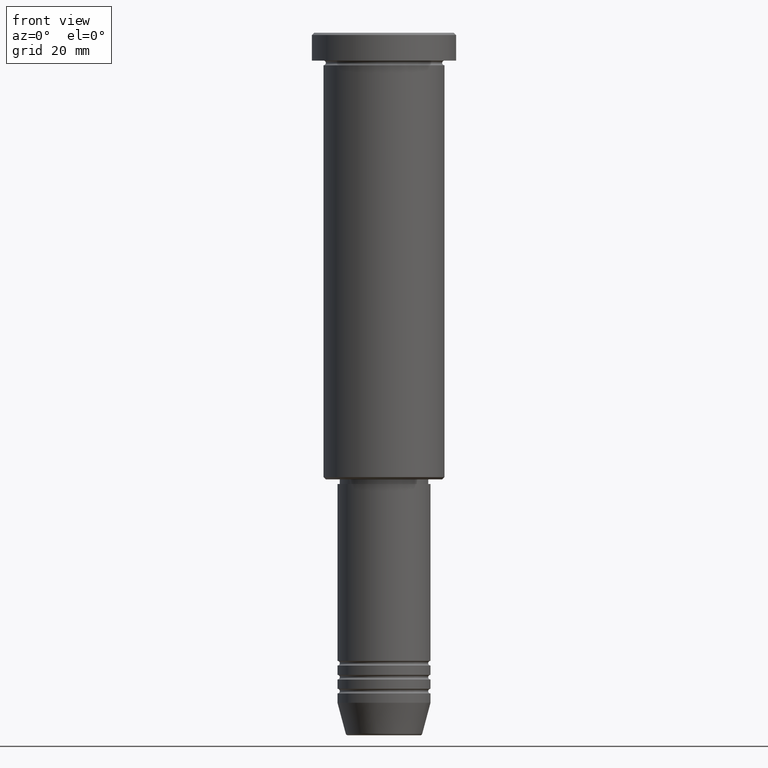
[diagram: clean part render]
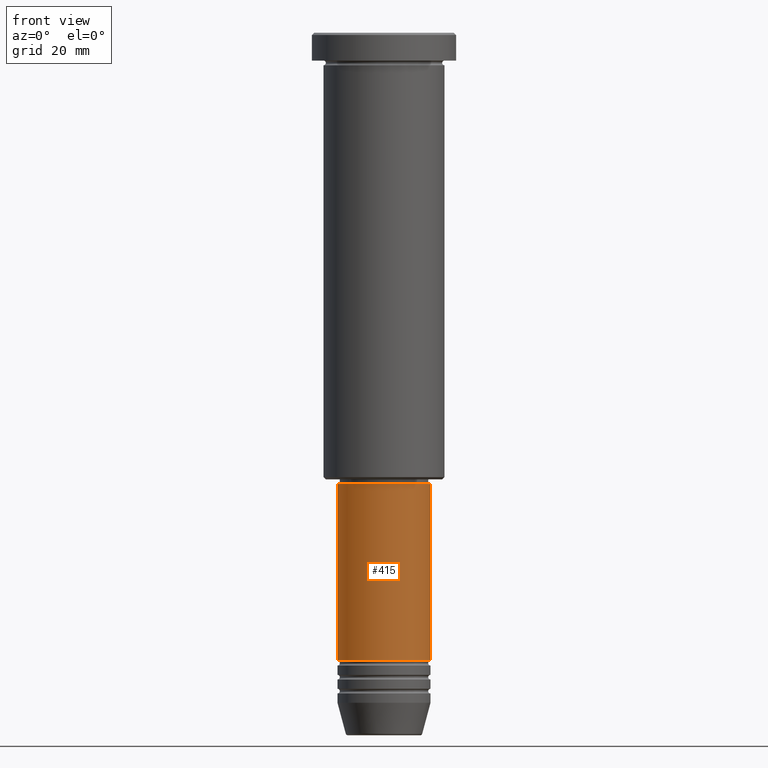
[diagram: same view with one face highlighted and labeled with its STEP entity id]
A machine part, front view. The second image highlights one B-rep face of the part: STEP entity #415.
In plain terms, the highlighted cylindrical surface (partial cylindrical patch) has radius 10 mm, axis along (-0, -0, 1).
Its self-contained STEP definition (entity closure, byte-faithful):
#10 = AXIS2_PLACEMENT_3D ( 'NONE', #1159, #329, #1049 ) ;
#45 = CARTESIAN_POINT ( 'NONE',  ( -10.00000000000000000, 1.224646799147353256E-15, -134.9999999999999716 ) ) ;
#55 = DIRECTION ( 'NONE',  ( -0.000000000000000000, -0.000000000000000000, 1.000000000000000000 ) ) ;
#61 = AXIS2_PLACEMENT_3D ( 'NONE', #1169, #709, #909 ) ;
#84 = VERTEX_POINT ( 'NONE', #1183 ) ;
#107 = EDGE_CURVE ( 'NONE', #737, #84, #1149, .T. ) ;
#219 = CARTESIAN_POINT ( 'NONE',  ( 10.00000000000000000, 0.000000000000000000, 0.000000000000000000 ) ) ;
#235 = LINE ( 'NONE', #219, #960 ) ;
#261 = DIRECTION ( 'NONE',  ( -0.000000000000000000, -0.000000000000000000, 1.000000000000000000 ) ) ;
#284 = CARTESIAN_POINT ( 'NONE',  ( 0.000000000000000000, 0.000000000000000000, -134.9999999999999716 ) ) ;
#289 = AXIS2_PLACEMENT_3D ( 'NONE', #284, #1106, #929 ) ;
#291 = ORIENTED_EDGE ( 'NONE', *, *, #107, .T. ) ;
#329 = DIRECTION ( 'NONE',  ( -0.000000000000000000, -0.000000000000000000, 1.000000000000000000 ) ) ;
#385 = VERTEX_POINT ( 'NONE', #514 ) ;
#415 = ADVANCED_FACE ( 'NONE', ( #455 ), #799, .T. ) ;
#455 = FACE_OUTER_BOUND ( 'NONE', #788, .T. ) ;
#462 = EDGE_CURVE ( 'NONE', #737, #539, #891, .T. ) ;
#514 = CARTESIAN_POINT ( 'NONE',  ( 10.00000000000000000, 0.000000000000000000, -97.00000000000000000 ) ) ;
#533 = CARTESIAN_POINT ( 'NONE',  ( -10.00000000000000000, 1.224646799147353256E-15, 0.000000000000000000 ) ) ;
#539 = VERTEX_POINT ( 'NONE', #836 ) ;
#593 = ORIENTED_EDGE ( 'NONE', *, *, #462, .F. ) ;
#709 = DIRECTION ( 'NONE',  ( -0.000000000000000000, -0.000000000000000000, 1.000000000000000000 ) ) ;
#725 = EDGE_CURVE ( 'NONE', #539, #385, #861, .T. ) ;
#737 = VERTEX_POINT ( 'NONE', #45 ) ;
#780 = ORIENTED_EDGE ( 'NONE', *, *, #725, .F. ) ;
#788 = EDGE_LOOP ( 'NONE', ( #593, #291, #975, #780 ) ) ;
#799 = CYLINDRICAL_SURFACE ( 'NONE', #61, 10.00000000000000000 ) ;
#836 = CARTESIAN_POINT ( 'NONE',  ( -10.00000000000000000, 1.224646799147353256E-15, -97.00000000000000000 ) ) ;
#861 = CIRCLE ( 'NONE', #10, 10.00000000000000000 ) ;
#891 = LINE ( 'NONE', #533, #1038 ) ;
#909 = DIRECTION ( 'NONE',  ( 1.000000000000000000, 0.000000000000000000, 0.000000000000000000 ) ) ;
#929 = DIRECTION ( 'NONE',  ( 1.000000000000000000, 0.000000000000000000, 0.000000000000000000 ) ) ;
#960 = VECTOR ( 'NONE', #55, 1000.000000000000000 ) ;
#975 = ORIENTED_EDGE ( 'NONE', *, *, #1172, .T. ) ;
#1038 = VECTOR ( 'NONE', #261, 1000.000000000000000 ) ;
#1049 = DIRECTION ( 'NONE',  ( 1.000000000000000000, 0.000000000000000000, 0.000000000000000000 ) ) ;
#1106 = DIRECTION ( 'NONE',  ( -0.000000000000000000, -0.000000000000000000, 1.000000000000000000 ) ) ;
#1149 = CIRCLE ( 'NONE', #289, 10.00000000000000000 ) ;
#1159 = CARTESIAN_POINT ( 'NONE',  ( 0.000000000000000000, 0.000000000000000000, -97.00000000000000000 ) ) ;
#1169 = CARTESIAN_POINT ( 'NONE',  ( 0.000000000000000000, 0.000000000000000000, 0.000000000000000000 ) ) ;
#1172 = EDGE_CURVE ( 'NONE', #84, #385, #235, .T. ) ;
#1183 = CARTESIAN_POINT ( 'NONE',  ( 10.00000000000000000, 0.000000000000000000, -134.9999999999999716 ) ) ;